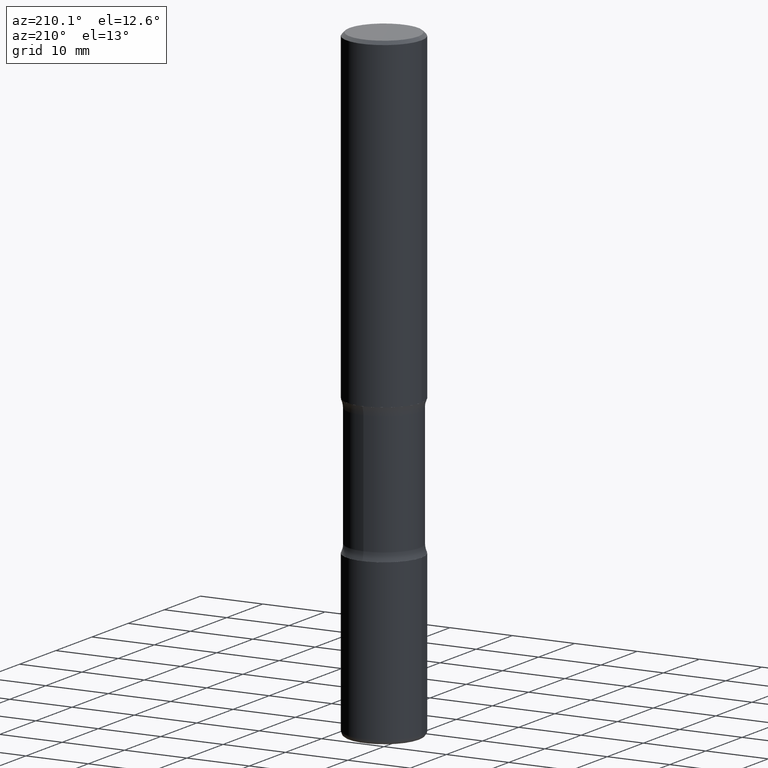
[diagram: clean part render]
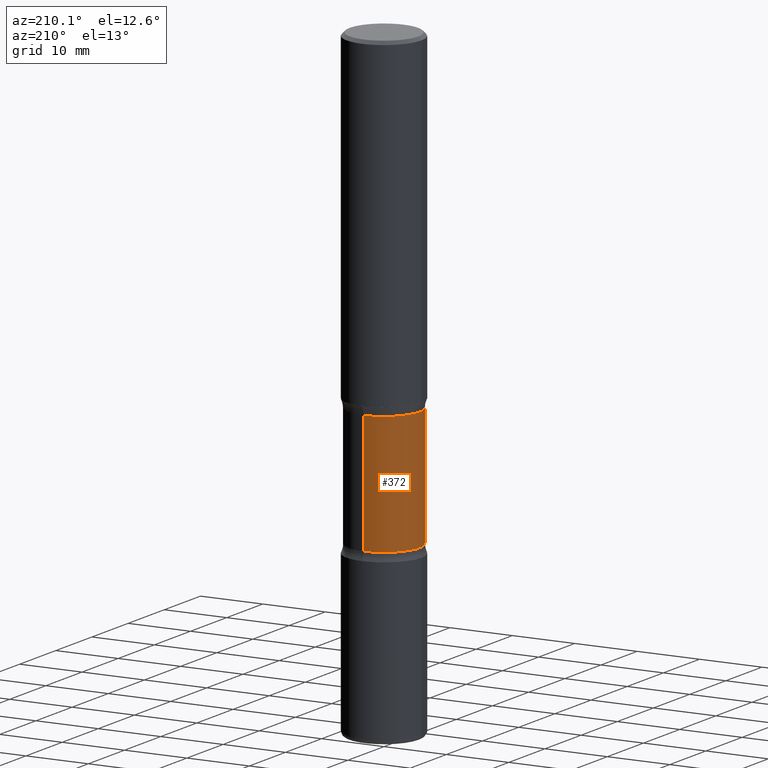
[diagram: same view with one face highlighted and labeled with its STEP entity id]
A machine part, auxiliary view. The second image highlights one B-rep face of the part: STEP entity #372.
In plain terms, the highlighted cylindrical surface (partial cylindrical patch) has radius 5.6998 mm, axis along (0, -0, -1).
Its self-contained STEP definition (entity closure, byte-faithful):
#11 = EDGE_LOOP ( 'NONE', ( #391, #170, #16, #388 ) ) ;
#16 = ORIENTED_EDGE ( 'NONE', *, *, #82, .T. ) ;
#35 = CARTESIAN_POINT ( 'NONE',  ( 1.566976824872848494E-15, 0.2243999999999925499, -2.100216601173596320 ) ) ;
#62 = CARTESIAN_POINT ( 'NONE',  ( 9.710227154047748282E-29, -1.362793696358492956E-14, -3.937000000000000277 ) ) ;
#82 = EDGE_CURVE ( 'NONE', #317, #536, #149, .T. ) ;
#105 = CARTESIAN_POINT ( 'NONE',  ( -1.579972688886713168E-15, -0.2244000000000099804, -2.860383398826404466 ) ) ;
#107 = CARTESIAN_POINT ( 'NONE',  ( 1.566976824872894642E-15, 0.2243999999999863049, -3.937000000000000721 ) ) ;
#111 = AXIS2_PLACEMENT_3D ( 'NONE', #62, #318, #191 ) ;
#124 = CARTESIAN_POINT ( 'NONE',  ( 5.070539682259229331E-29, -7.426630284172150130E-15, -2.100216601173595432 ) ) ;
#129 = FACE_OUTER_BOUND ( 'NONE', #11, .T. ) ;
#138 = DIRECTION ( 'NONE',  ( 2.525985086076564115E-29, -3.376177443336566513E-15, -1.000000000000000000 ) ) ;
#147 = CARTESIAN_POINT ( 'NONE',  ( 6.990709676060807691E-29, -9.993088279580958225E-15, -2.860383398826405354 ) ) ;
#149 = LINE ( 'NONE', #107, #197 ) ;
#150 = CARTESIAN_POINT ( 'NONE',  ( 1.566976824872867821E-15, 0.2243999999999899686, -2.860383398826405799 ) ) ;
#160 = CARTESIAN_POINT ( 'NONE',  ( -1.579972688886734072E-15, -0.2244000000000073713, -2.100216601173594544 ) ) ;
#163 = AXIS2_PLACEMENT_3D ( 'NONE', #147, #138, #182 ) ;
#170 = ORIENTED_EDGE ( 'NONE', *, *, #214, .T. ) ;
#182 = DIRECTION ( 'NONE',  ( 6.982962677686265922E-15, 1.000000000000000000, -2.434802133390609421E-15 ) ) ;
#191 = DIRECTION ( 'NONE',  ( 6.982962677686265922E-15, 1.000000000000000000, -2.434802133390609815E-15 ) ) ;
#197 = VECTOR ( 'NONE', #496, 39.37007874015748143 ) ;
#214 = EDGE_CURVE ( 'NONE', #228, #317, #354, .T. ) ;
#228 = VERTEX_POINT ( 'NONE', #160 ) ;
#289 = CARTESIAN_POINT ( 'NONE',  ( -1.539495750699834052E-15, -0.2244000000000135608, -3.936999999999999389 ) ) ;
#303 = AXIS2_PLACEMENT_3D ( 'NONE', #124, #509, #549 ) ;
#308 = EDGE_CURVE ( 'NONE', #228, #352, #523, .T. ) ;
#310 = VECTOR ( 'NONE', #462, 39.37007874015748143 ) ;
#317 = VERTEX_POINT ( 'NONE', #35 ) ;
#318 = DIRECTION ( 'NONE',  ( 2.525985086076564115E-29, -3.376177443336566513E-15, -1.000000000000000000 ) ) ;
#349 = CIRCLE ( 'NONE', #163, 0.2243999999999999606 ) ;
#352 = VERTEX_POINT ( 'NONE', #105 ) ;
#354 = CIRCLE ( 'NONE', #303, 0.2243999999999999606 ) ;
#355 = CYLINDRICAL_SURFACE ( 'NONE', #111, 0.2243999999999999329 ) ;
#372 = ADVANCED_FACE ( 'NONE', ( #129 ), #355, .T. ) ;
#380 = EDGE_CURVE ( 'NONE', #352, #536, #349, .T. ) ;
#388 = ORIENTED_EDGE ( 'NONE', *, *, #380, .F. ) ;
#391 = ORIENTED_EDGE ( 'NONE', *, *, #308, .F. ) ;
#462 = DIRECTION ( 'NONE',  ( 2.525985086076564115E-29, -3.376177443336566513E-15, -1.000000000000000000 ) ) ;
#496 = DIRECTION ( 'NONE',  ( 2.525985086076564115E-29, -3.376177443336566513E-15, -1.000000000000000000 ) ) ;
#509 = DIRECTION ( 'NONE',  ( 2.525985086076564115E-29, -3.376177443336566513E-15, -1.000000000000000000 ) ) ;
#523 = LINE ( 'NONE', #289, #310 ) ;
#536 = VERTEX_POINT ( 'NONE', #150 ) ;
#549 = DIRECTION ( 'NONE',  ( 6.982962677686265922E-15, 1.000000000000000000, -3.652203200085913934E-15 ) ) ;